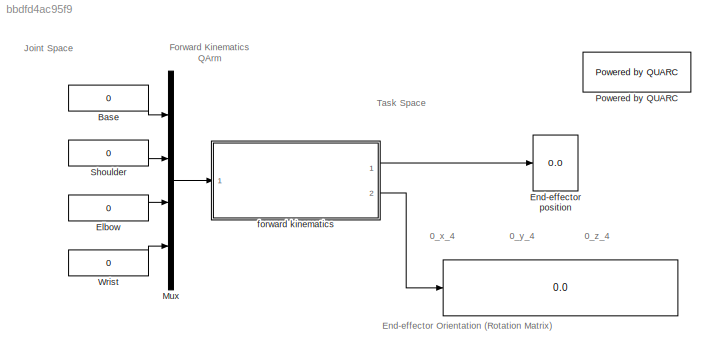
MODEL slx_bbdfd4ac95f9
KIND model
CONFIG AbsTol = auto
CONFIG EnableMultiTasking = on
CONFIG FixedStep = 1/500
CONFIG MaxStep = auto
CONFIG MinStep = auto
CONFIG RelTol = 1e-3
CONFIG SampleTimeConstraint = Unconstrained
CONFIG SolverName = ode4
CONFIG StartTime = 0.0
CONFIG StopTime = inf
BLOCK [Display]  
  Decimation = 1
  Format = bank
  Ports = [1]
BLOCK [Constant] Base
  Value = 0
BLOCK [Constant] Elbow
  Value = 0
BLOCK [Display] End-effector position
  Decimation = 1
  Format = bank
  Ports = [1]
BLOCK [Mux] Mux
  DisplayOption = bar
  Ports = [4, 1]
BLOCK [Reference] Powered by QUARC  REF=quarc_library/Logos/Powered by QUARC
  Ports = []
  SourceBlock = quarc_library/Logos/Powered by QUARC
  SourceProductName = QUARC Targets
  SourceType = Powered by QUARC
BLOCK [Constant] Shoulder
  Value = 0
BLOCK [Constant] Wrist
  Value = 0
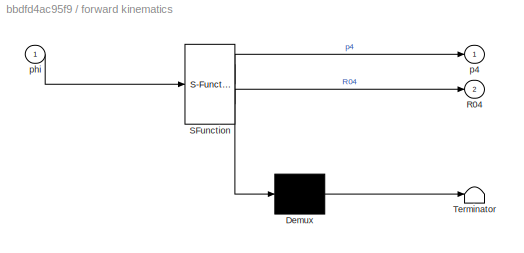
BLOCK [SubSystem] forward kinematics
  ErrorFcn = Stateflow.Translate.translate
  NameLocation = top
  PermitHierarchicalResolution = ExplicitOnly
  Ports = [1, 2]
  SFBlockType = MATLAB Function
  TreatAsAtomicUnit = on
BLOCK [Demux] forward kinematics/ Demux 
  Outputs = 1
  Ports = [1, 1]
BLOCK [S-Function] forward kinematics/ SFunction 
  EnableBusSupport = off
  FunctionName = sf_sfun
  PortCounts = [1 3]
  Ports = [1, 3]
  SFcnIsStateOwnerBlock = off
  SFunctionDeploymentMode = off
  Tag = Stateflow S-Function 3
BLOCK [Terminator] forward kinematics/ Terminator 
BLOCK [Outport] forward kinematics/R04
  Port = 2
  VectorParamsAs1DForOutWhenUnconnected = off
BLOCK [Outport] forward kinematics/p4
  VectorParamsAs1DForOutWhenUnconnected = off
BLOCK [Inport] forward kinematics/phi
ANNOTATION (root): 0_x_4
ANNOTATION (root): 0_y_4
ANNOTATION (root): 0_z_4
ANNOTATION (root): Forward Kinematics QArm
ANNOTATION (root): End-effector Orientation (Rotation Matrix)
ANNOTATION (root): Joint Space
ANNOTATION (root): Task Space
LINE Base:1 -> Mux:1
LINE Elbow:1 -> Mux:3
LINE Mux:1 -> forward kinematics:1
LINE Shoulder:1 -> Mux:2
LINE Wrist:1 -> Mux:4
LINE forward kinematics:1 -> End-effector position:1
LINE forward kinematics:2 ->  :1
CHART forward kinematics states=1 transitions=1
  STATE_LABEL 'eML_blk_kernel()'
  STATE_LABEL 'SCRIPT:\nfunction [p4, R04] = qarmForwardKinematics(phi)\n\n%% QUANSER_ARM_FPK\n% v 4.0 - 4th June 2020\n\n% REFERENCE: \n% Chapter 3. Forward Kinematics\n% Robot Dynamics and Control \n% Spong, Vidyasagar\n% 1989\n\n% INPUTS:\n% phi     : Alternate joint angles vector 4 x 1\n\n% OUTPUTS:\n% p4      : End-effector frame {4} position vector expressed in base frame {0}\n% R04     : rotation matrix from end-effector ...<+1865ch>'
CHART  states=0 transitions=0
